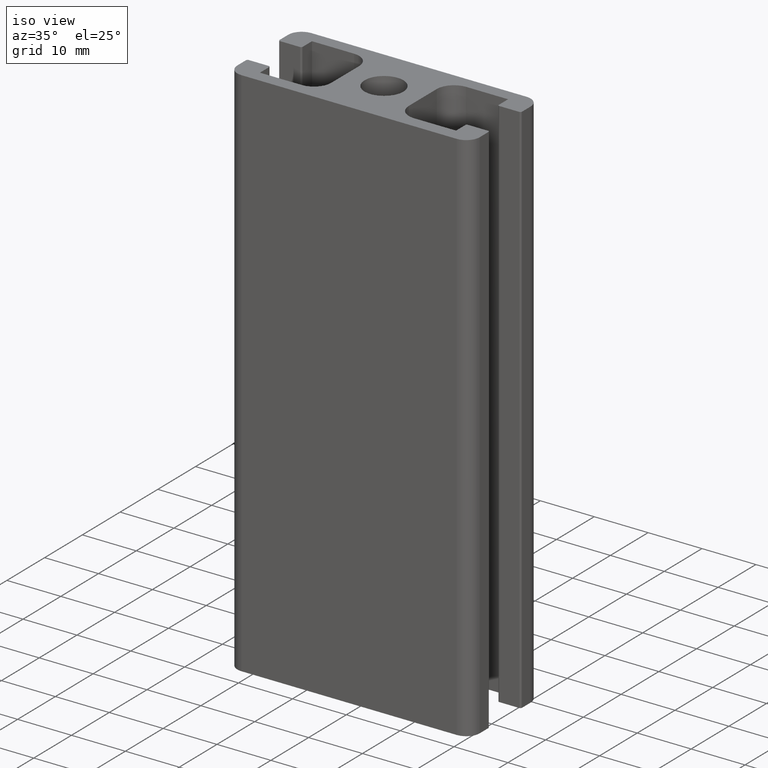
[diagram: clean part render]
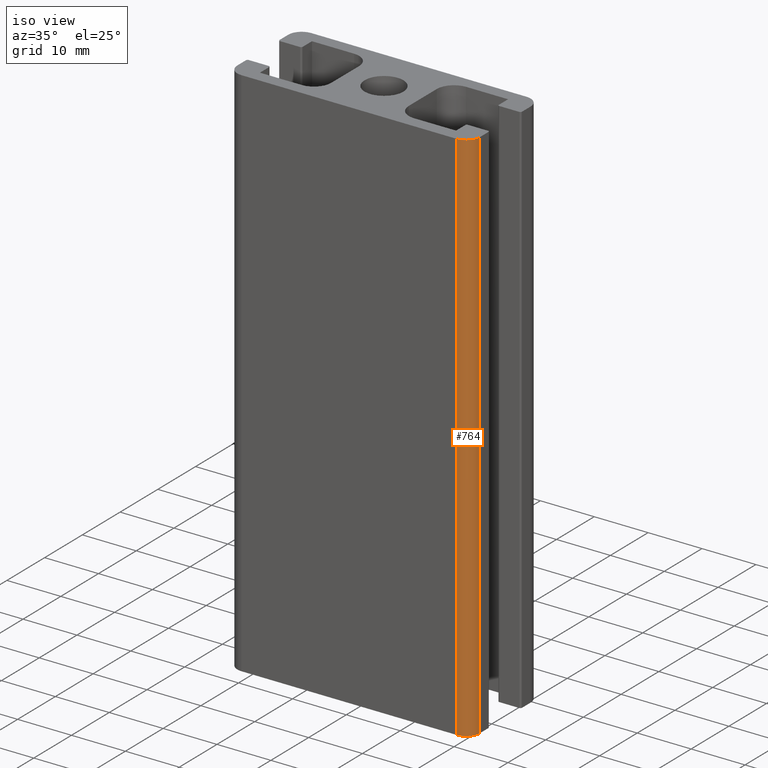
[diagram: same view with one face highlighted and labeled with its STEP entity id]
A machine part, iso view. The second image highlights one B-rep face of the part: STEP entity #764.
In plain terms, the highlighted cylindrical surface (edge-blend (fillet) strip) has radius 2.5 mm, axis along (0, 0, 1).
Its self-contained STEP definition (entity closure, byte-faithful):
#103=LINE('',#1256,#179);
#111=LINE('',#1285,#187);
#179=VECTOR('',#1024,100.);
#187=VECTOR('',#1058,100.);
#228=FACE_OUTER_BOUND('',#269,.T.);
#269=EDGE_LOOP('',(#666,#667,#668,#669));
#300=CIRCLE('',#828,2.5);
#306=CIRCLE('',#839,2.5);
#371=VERTEX_POINT('',#1253);
#372=VERTEX_POINT('',#1255);
#374=VERTEX_POINT('',#1261);
#380=VERTEX_POINT('',#1284);
#473=EDGE_CURVE('',#372,#371,#103,.T.);
#477=EDGE_CURVE('',#371,#374,#300,.T.);
#488=EDGE_CURVE('',#380,#374,#111,.T.);
#489=EDGE_CURVE('',#372,#380,#306,.T.);
#666=ORIENTED_EDGE('',*,*,#477,.T.);
#667=ORIENTED_EDGE('',*,*,#488,.F.);
#668=ORIENTED_EDGE('',*,*,#489,.F.);
#669=ORIENTED_EDGE('',*,*,#473,.T.);
#727=CYLINDRICAL_SURFACE('',#838,2.5);
#764=ADVANCED_FACE('',(#228),#727,.T.);
#828=AXIS2_PLACEMENT_3D('',#1263,#1031,#1032);
#838=AXIS2_PLACEMENT_3D('',#1283,#1056,#1057);
#839=AXIS2_PLACEMENT_3D('',#1286,#1059,#1060);
#1024=DIRECTION('',(0.,0.,1.));
#1031=DIRECTION('center_axis',(0.,0.,-1.));
#1032=DIRECTION('ref_axis',(0.,1.,0.));
#1056=DIRECTION('center_axis',(0.,0.,1.));
#1057=DIRECTION('ref_axis',(0.,1.,0.));
#1058=DIRECTION('',(0.,0.,1.));
#1059=DIRECTION('center_axis',(0.,0.,-1.));
#1060=DIRECTION('ref_axis',(0.,1.,0.));
#1253=CARTESIAN_POINT('',(22.5,-6.75,100.));
#1255=CARTESIAN_POINT('',(22.5,-6.75,0.));
#1256=CARTESIAN_POINT('',(22.5,-6.75,0.));
#1261=CARTESIAN_POINT('',(20.,-9.25,100.));
#1263=CARTESIAN_POINT('Origin',(20.,-6.75,100.));
#1283=CARTESIAN_POINT('Origin',(20.,-6.75,0.));
#1284=CARTESIAN_POINT('',(20.,-9.25,0.));
#1285=CARTESIAN_POINT('',(20.,-9.25,0.));
#1286=CARTESIAN_POINT('Origin',(20.,-6.75,0.));